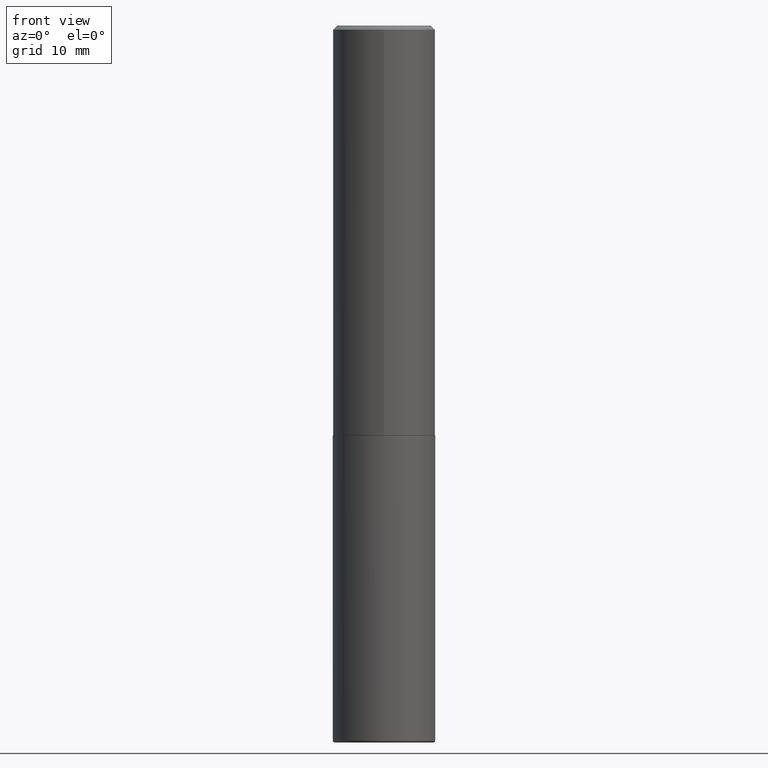
[diagram: clean part render]
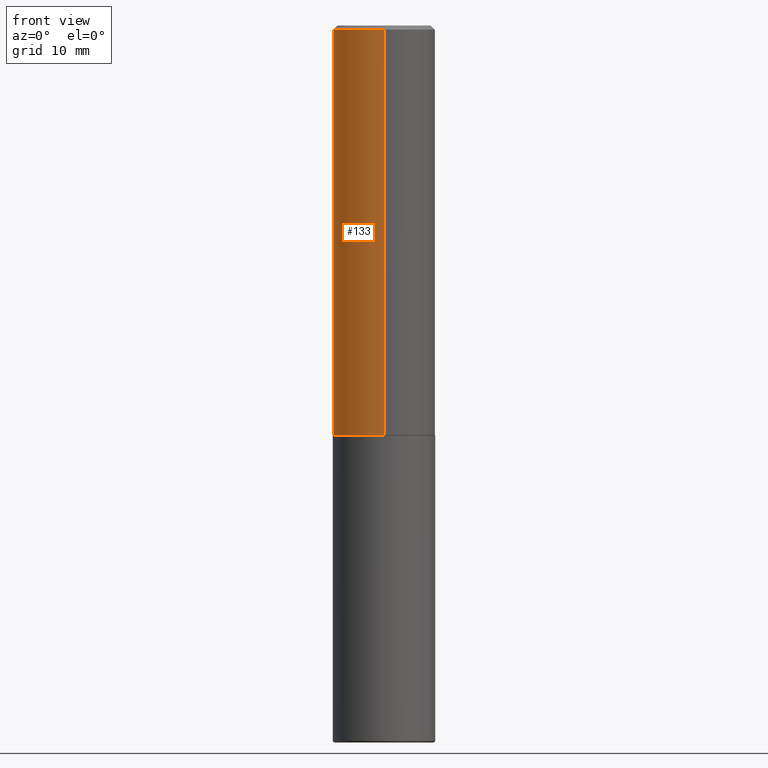
[diagram: same view with one face highlighted and labeled with its STEP entity id]
A machine part, front view. The second image highlights one B-rep face of the part: STEP entity #133.
In plain terms, the highlighted cylindrical surface (partial cylindrical patch) has radius 6.35 mm, axis along (-0, 0, 1).
Its self-contained STEP definition (entity closure, byte-faithful):
#4 = AXIS2_PLACEMENT_3D ( 'NONE', #415, #411, #121 ) ;
#6 = LINE ( 'NONE', #312, #364 ) ;
#9 = VECTOR ( 'NONE', #395, 39.37007874015748143 ) ;
#23 = DIRECTION ( 'NONE',  ( -2.445737183286911680E-29, 3.491097007558327602E-15, 1.000000000000000000 ) ) ;
#33 = EDGE_CURVE ( 'NONE', #390, #249, #53, .T. ) ;
#40 = LINE ( 'NONE', #392, #9 ) ;
#50 = CIRCLE ( 'NONE', #4, 0.2500000000000000000 ) ;
#52 = DIRECTION ( 'NONE',  ( -6.982962677686265922E-15, -1.000000000000000000, 3.278217592397112312E-15 ) ) ;
#53 = CIRCLE ( 'NONE', #138, 0.2500000000000002776 ) ;
#66 = CARTESIAN_POINT ( 'NONE',  ( -1.745740669421519543E-15, -0.2500000000000072164, -1.998999999999998778 ) ) ;
#89 = DIRECTION ( 'NONE',  ( -6.982962677686266711E-15, -1.000000000000000000, 3.491097007558327996E-15 ) ) ;
#98 = CARTESIAN_POINT ( 'NONE',  ( 1.745740669421566875E-15, 0.2499999999999999167, -0.02000000000000092676 ) ) ;
#121 = DIRECTION ( 'NONE',  ( -6.982962677686265922E-15, -1.000000000000000000, 3.483106191921935554E-15 ) ) ;
#133 = ADVANCED_FACE ( 'NONE', ( #409 ), #278, .T. ) ;
#138 = AXIS2_PLACEMENT_3D ( 'NONE', #175, #339, #52 ) ;
#139 = CARTESIAN_POINT ( 'NONE',  ( -1.715124499442882299E-15, -0.2500000000000000555, -0.01999999999999918510 ) ) ;
#145 = AXIS2_PLACEMENT_3D ( 'NONE', #306, #23, #89 ) ;
#163 = EDGE_CURVE ( 'NONE', #358, #307, #50, .T. ) ;
#165 = ORIENTED_EDGE ( 'NONE', *, *, #33, .T. ) ;
#175 = CARTESIAN_POINT ( 'NONE',  ( 4.889028629390535480E-29, -6.978702918109095527E-15, -1.998999999999999666 ) ) ;
#198 = ORIENTED_EDGE ( 'NONE', *, *, #323, .T. ) ;
#224 = EDGE_CURVE ( 'NONE', #390, #358, #40, .T. ) ;
#234 = EDGE_LOOP ( 'NONE', ( #285, #165, #198, #251 ) ) ;
#249 = VERTEX_POINT ( 'NONE', #66 ) ;
#251 = ORIENTED_EDGE ( 'NONE', *, *, #163, .F. ) ;
#252 = DIRECTION ( 'NONE',  ( -2.445737183286911680E-29, 3.491097007558327602E-15, 1.000000000000000000 ) ) ;
#278 = CYLINDRICAL_SURFACE ( 'NONE', #145, 0.2500000000000001110 ) ;
#285 = ORIENTED_EDGE ( 'NONE', *, *, #224, .F. ) ;
#299 = CARTESIAN_POINT ( 'NONE',  ( 1.776356839400276103E-15, 0.2499999999999933109, -1.999000000000000554 ) ) ;
#306 = CARTESIAN_POINT ( 'NONE',  ( 0.000000000000000000, 0.000000000000000000, 0.000000000000000000 ) ) ;
#307 = VERTEX_POINT ( 'NONE', #139 ) ;
#312 = CARTESIAN_POINT ( 'NONE',  ( -1.745740669421567467E-15, -0.2500000000000001110, 8.727742518895823935E-16 ) ) ;
#323 = EDGE_CURVE ( 'NONE', #249, #307, #6, .T. ) ;
#339 = DIRECTION ( 'NONE',  ( -2.445737183286911680E-29, 3.491097007558327602E-15, 1.000000000000000000 ) ) ;
#358 = VERTEX_POINT ( 'NONE', #98 ) ;
#364 = VECTOR ( 'NONE', #252, 39.37007874015748143 ) ;
#390 = VERTEX_POINT ( 'NONE', #299 ) ;
#392 = CARTESIAN_POINT ( 'NONE',  ( 1.776356839400251254E-15, 0.2500000000000001110, -8.727742518895823935E-16 ) ) ;
#395 = DIRECTION ( 'NONE',  ( -2.445737183286911680E-29, 3.491097007558327602E-15, 1.000000000000000000 ) ) ;
#409 = FACE_OUTER_BOUND ( 'NONE', #234, .T. ) ;
#411 = DIRECTION ( 'NONE',  ( -2.445737183286911680E-29, 3.491097007558327602E-15, 1.000000000000000000 ) ) ;
#415 = CARTESIAN_POINT ( 'NONE',  ( 4.891474366573836672E-31, -6.982194015116674235E-17, -0.02000000000000005593 ) ) ;